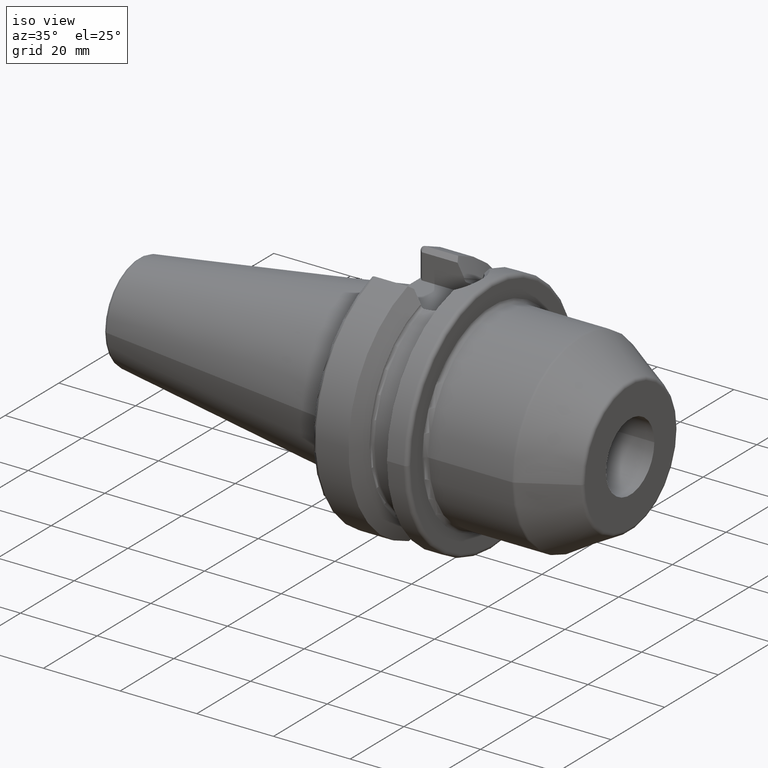
[diagram: clean part render]
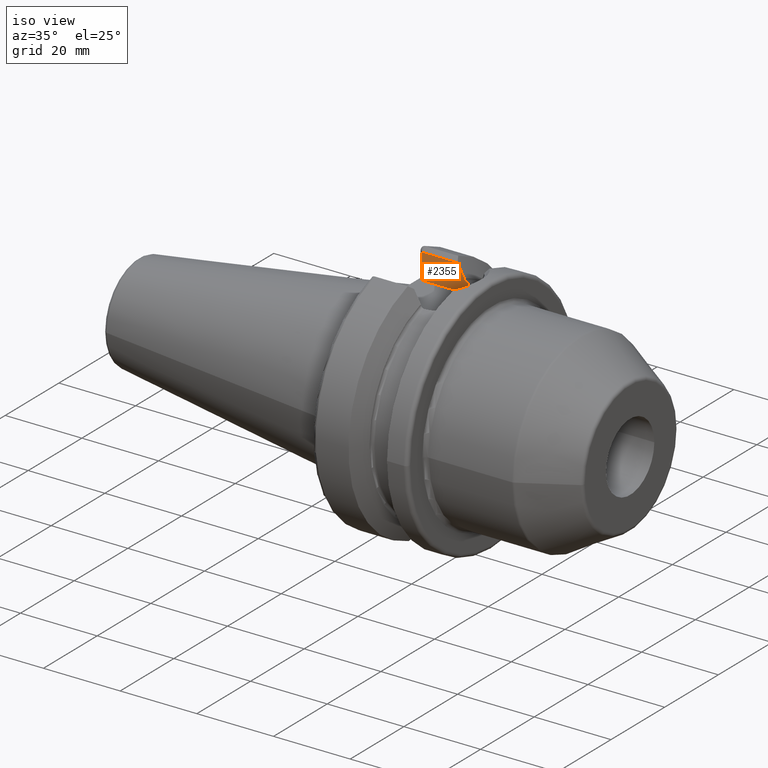
[diagram: same view with one face highlighted and labeled with its STEP entity id]
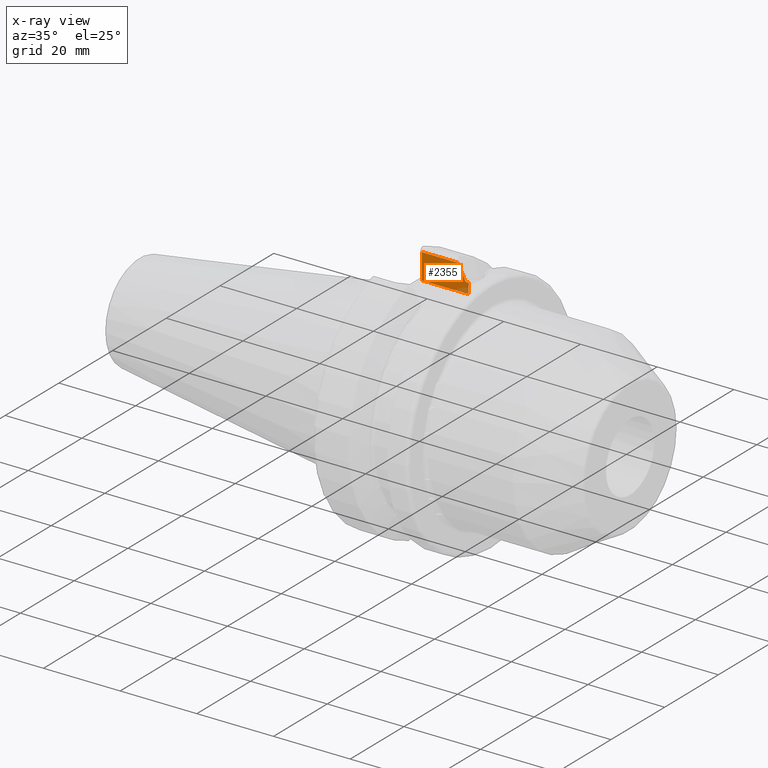
[diagram: x-ray of the same camera — body ghosted, the highlighted face saturated]
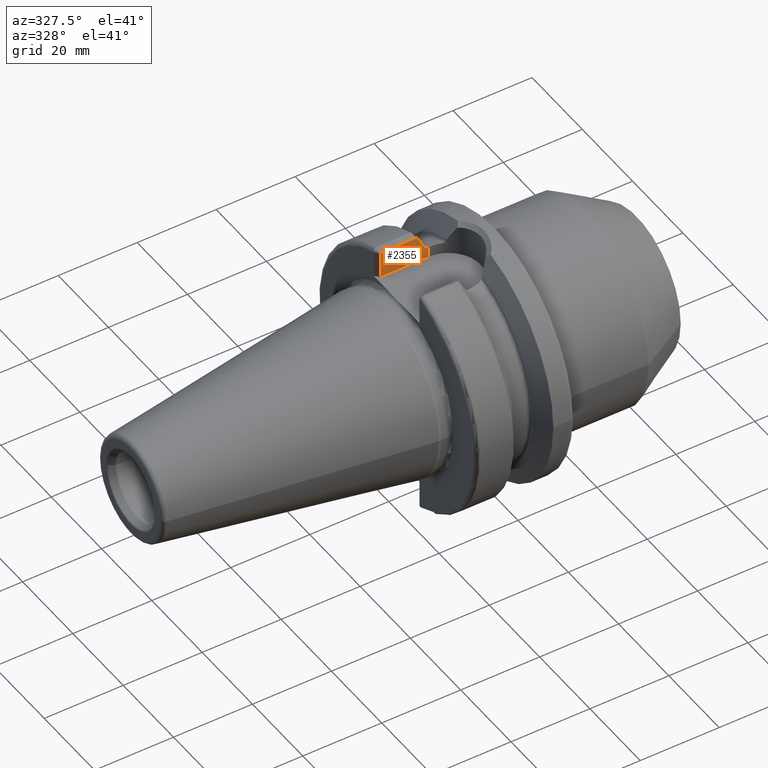
[diagram: same view with one face highlighted and labeled with its STEP entity id]
A machine part, iso view. The second image highlights one B-rep face of the part: STEP entity #2355.
The next image is the same camera in x-ray: the body ghosted, the highlighted face saturated — about 4% of this face is hidden behind the body in this view.
A second angle (auxiliary view) of the same face is appended — the face is thin or edge-on in the first view.
In plain terms, the highlighted planar face has unit normal (0, 1, 0).
Its self-contained STEP definition (entity closure, byte-faithful):
#642=DIRECTION('',(6.771558882016E-14,0.E0,1.E0));
#643=VECTOR('',#642,5.246522611264E-2);
#644=CARTESIAN_POINT('',(1.40625E1,8.095E0,2.588892813540E1));
#645=LINE('',#644,#643);
#646=CARTESIAN_POINT('',(1.48125E1,8.095E0,2.510202382279E1));
#647=CARTESIAN_POINT('',(1.474626583175E1,8.095E0,2.510202382279E1));
#648=CARTESIAN_POINT('',(1.462196122728E1,8.095E0,2.512019824361E1));
#649=CARTESIAN_POINT('',(1.446015344720E1,8.095E0,2.518681119149E1));
#650=CARTESIAN_POINT('',(1.432194250541E1,8.095E0,2.528577048685E1));
#651=CARTESIAN_POINT('',(1.421112933741E1,8.095E0,2.540882158997E1));
#652=CARTESIAN_POINT('',(1.412599264270E1,8.095E0,2.555700431287E1));
#653=CARTESIAN_POINT('',(1.407429746920E1,8.095E0,2.571931087657E1));
#654=CARTESIAN_POINT('',(1.40625E1,8.095E0,2.583143069402E1));
#655=CARTESIAN_POINT('',(1.40625E1,8.095E0,2.588892813540E1));
#657=DIRECTION('',(1.E0,0.E0,0.E0));
#658=VECTOR('',#657,3.425E-1);
#659=CARTESIAN_POINT('',(1.48125E1,8.095E0,2.510202382279E1));
#660=LINE('',#659,#658);
#661=DIRECTION('',(0.E0,0.E0,1.E0));
#662=VECTOR('',#661,2.652023822792E0);
#663=CARTESIAN_POINT('',(1.5155E1,8.095E0,2.245E1));
#664=LINE('',#663,#662);
#665=DIRECTION('',(0.E0,0.E0,1.E0));
#666=VECTOR('',#665,6.649289188054E0);
#667=CARTESIAN_POINT('',(3.E0,8.095E0,2.245E1));
#668=LINE('',#667,#666);
#669=DIRECTION('',(1.E0,0.E0,0.E0));
#670=VECTOR('',#669,9.313598297306E0);
#671=CARTESIAN_POINT('',(3.E0,8.095E0,2.909928918805E1));
#672=LINE('',#671,#670);
#673=CARTESIAN_POINT('',(1.40625E1,8.095E0,2.594139336151E1));
#674=CARTESIAN_POINT('',(1.387619304722E1,8.095E0,2.627943267022E1));
#675=CARTESIAN_POINT('',(1.349822147379E1,8.095E0,2.696405968402E1));
#676=CARTESIAN_POINT('',(1.291532431893E1,8.095E0,2.801651320770E1));
#677=CARTESIAN_POINT('',(1.251595456147E1,8.095E0,2.873548878206E1));
#678=CARTESIAN_POINT('',(1.231359829731E1,8.095E0,2.909928918805E1));
#692=DIRECTION('',(-1.E0,0.E0,0.E0));
#693=VECTOR('',#692,1.2155E1);
#694=CARTESIAN_POINT('',(1.5155E1,8.095E0,2.245E1));
#695=LINE('',#694,#693);
#1304=CARTESIAN_POINT('',(1.40625E1,8.095E0,2.588892813540E1));
#1306=VERTEX_POINT('',#1304);
#1312=CARTESIAN_POINT('',(1.48125E1,8.095E0,2.510202382279E1));
#1314=VERTEX_POINT('',#1312);
#1341=CARTESIAN_POINT('',(1.40625E1,8.095E0,2.594139336151E1));
#1343=VERTEX_POINT('',#1341);
#1431=CARTESIAN_POINT('',(1.5155E1,8.095E0,2.245E1));
#1433=VERTEX_POINT('',#1431);
#1446=CARTESIAN_POINT('',(1.5155E1,8.095E0,2.510202382279E1));
#1447=VERTEX_POINT('',#1446);
#1448=VERTEX_POINT('',#678);
#1486=CARTESIAN_POINT('',(3.E0,8.095E0,2.245E1));
#1487=CARTESIAN_POINT('',(3.E0,8.095E0,2.909928918805E1));
#1488=VERTEX_POINT('',#1486);
#1489=VERTEX_POINT('',#1487);
#2338=CARTESIAN_POINT('',(1.5155E1,8.095E0,2.245E1));
#2339=DIRECTION('',(0.E0,1.E0,0.E0));
#2340=DIRECTION('',(-1.E0,0.E0,0.E0));
#2341=AXIS2_PLACEMENT_3D('',#2338,#2339,#2340);
#2342=PLANE('',#2341);
#2343=ORIENTED_EDGE('',*,*,#1792,.F.);
#2344=ORIENTED_EDGE('',*,*,#1946,.F.);
#2345=ORIENTED_EDGE('',*,*,#1978,.T.);
#2346=ORIENTED_EDGE('',*,*,#2095,.F.);
#2348=ORIENTED_EDGE('',*,*,#2347,.T.);
#2350=ORIENTED_EDGE('',*,*,#2349,.T.);
#2351=ORIENTED_EDGE('',*,*,#2331,.T.);
#2352=ORIENTED_EDGE('',*,*,#1824,.F.);
#2353=EDGE_LOOP('',(#2343,#2344,#2345,#2346,#2348,#2350,#2351,#2352));
#2354=FACE_OUTER_BOUND('',#2353,.F.);
#2355=ADVANCED_FACE('',(#2354),#2342,.F.);
#656=B_SPLINE_CURVE_WITH_KNOTS('',3,(#646,#647,#648,#649,#650,#651,#652,#653,
#654,#655),.UNSPECIFIED.,.F.,.F.,(4,1,1,1,1,1,1,4),(0.E0,1.428571428571E-1,
2.857142857143E-1,4.285714285714E-1,5.714285714286E-1,7.142857142857E-1,
8.571428571429E-1,1.E0),.UNSPECIFIED.);
#679=B_SPLINE_CURVE_WITH_KNOTS('',3,(#673,#674,#675,#676,#677,#678),
.UNSPECIFIED.,.F.,.F.,(4,1,1,4),(0.E0,3.333333333333E-1,6.666666666667E-1,1.E0),
.UNSPECIFIED.);
#1792=EDGE_CURVE('',#1306,#1343,#645,.T.);
#1824=EDGE_CURVE('',#1343,#1448,#679,.T.);
#1946=EDGE_CURVE('',#1314,#1306,#656,.T.);
#1978=EDGE_CURVE('',#1314,#1447,#660,.T.);
#2095=EDGE_CURVE('',#1433,#1447,#664,.T.);
#2331=EDGE_CURVE('',#1489,#1448,#672,.T.);
#2347=EDGE_CURVE('',#1433,#1488,#695,.T.);
#2349=EDGE_CURVE('',#1488,#1489,#668,.T.);